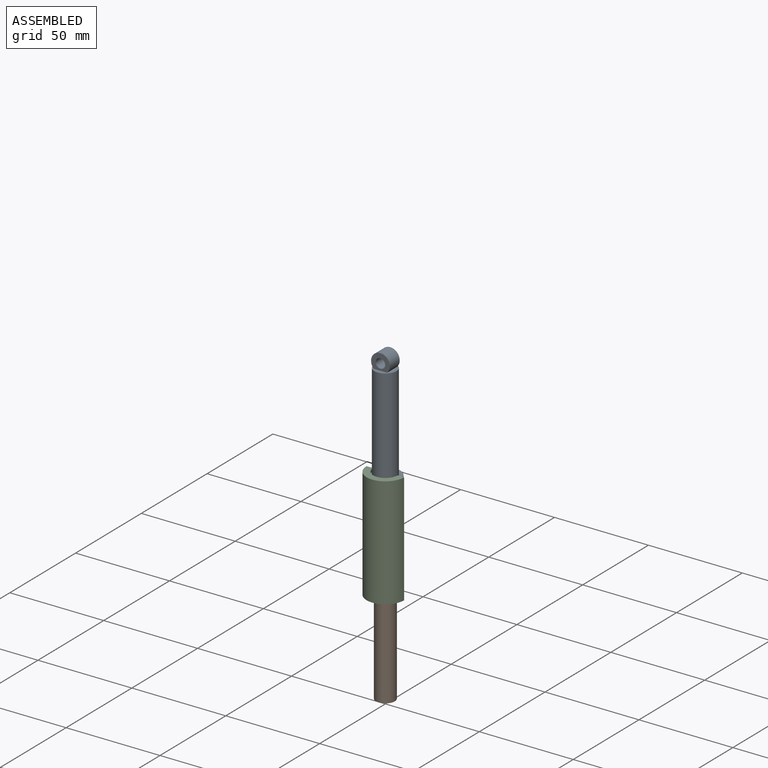
[diagram: assembled view]
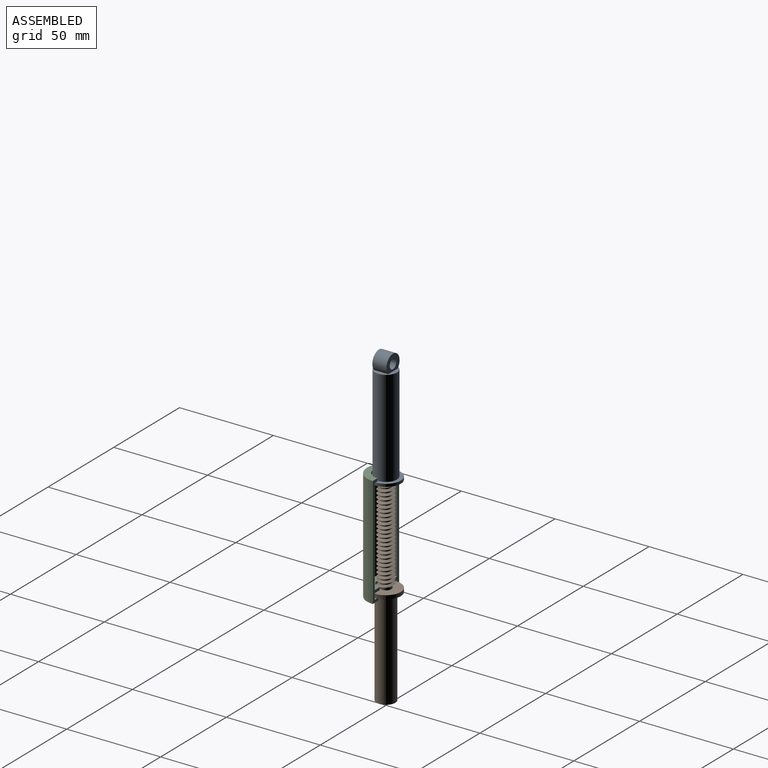
[diagram: assembled view, second angle]
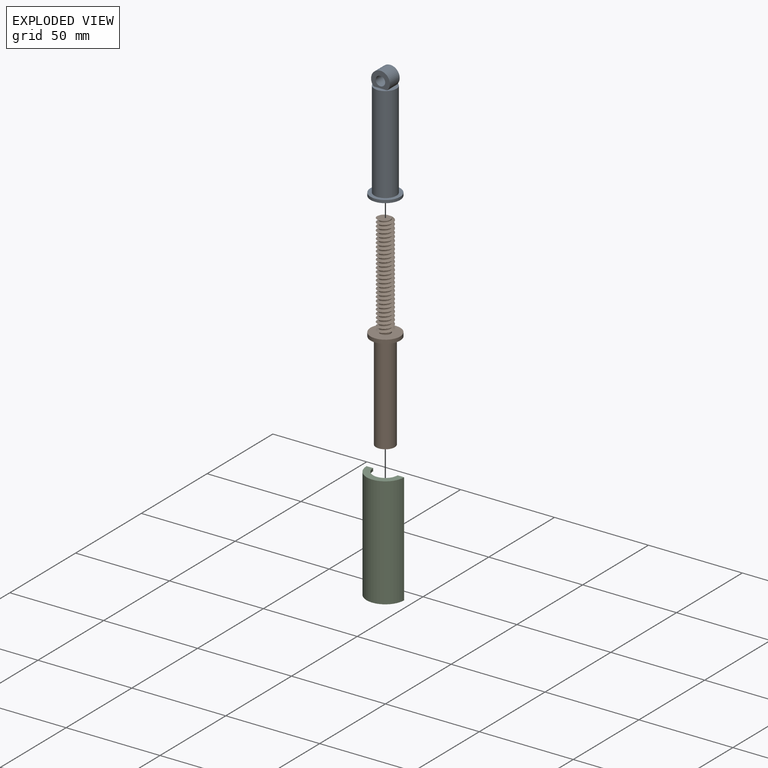
[diagram: exploded view]
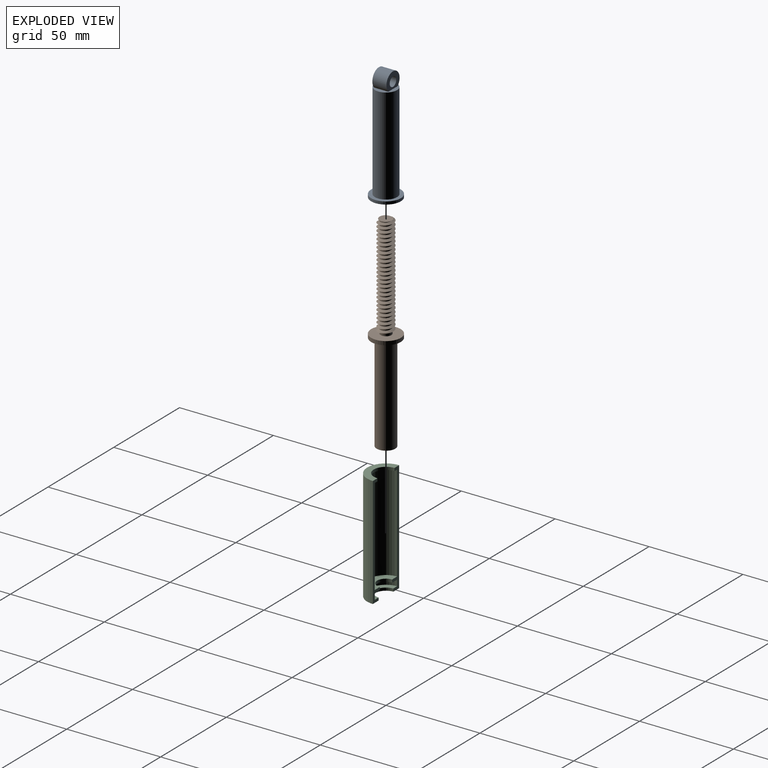
[diagram: exploded view, second angle]
ASSEMBLY  parts=3 mates=2
PART A: 14 faces, bbox 17.2x17.2x64.2 mm
  f0: cylinder r=3.27mm len=51.5mm, axis (0,0,-1), area -342.9mm2, adj f1,f2,f3,f6,f9
  f1: bspline ~53.67x11.55mm, area 1339.4mm2, adj f0,f2,f6,f9
  f2: bspline ~53.67x11.55mm, area 1336.7mm2, adj f0,f1,f3,f6,f9
  f3: plane 0.86x0.5mm, normal (0,1,0), area 0.2mm2, adj f0,f2,f9
  f4: cylinder r=7.9mm len=15.8mm, axis (0,0,-1), area 74.5mm2, adj f5,f6
  f5: plane 15.8x15.8mm, normal (0,0,1), area 86.7mm2, adj f4,f7
  f6: plane 17.17x17.17mm, normal (0,0,-1), area 141.6mm2, adj f0,f1,f2,f4
  f7: cylinder r=5.9mm len=51.5mm, axis (0,0,-1), area 1909.1mm2, adj f5,f8
  f8: plane 11.8x11.8mm, normal (0,0,1), area 55.8mm2, adj f7,f11,f12,f13
  f9: plane 9.71x9.69mm, normal (0,0,-1), area 52mm2, adj f0,f1,f2,f3
  f10: cylinder r=2.5mm len=7.5mm, axis (0,1,0), area 117.8mm2, adj f12,f13
  f11: cylinder r=5mm len=10mm, axis (0,1,0), area 176mm2, adj f8,f12,f13
  f12: plane 10x8.5mm, normal (0,-1,0), area 51.5mm2, adj f8,f10,f11
  f13: plane 10x8.5mm, normal (0,1,0), area 51.5mm2, adj f8,f10,f11
PART B: 10 faces, bbox 16.6x16.6x110.7 mm
  f0: bspline ~56.08x9.7mm, area 912.1mm2, adj f1,f5,f6,f7
  f1: bspline ~55.42x9.7mm, area 902.6mm2, adj f0,f5,f6,f7
  f2: cylinder r=7.9mm len=15.8mm, axis (0,0,-1), area 99.3mm2, adj f3,f4
  f3: plane 15.8x15.8mm, normal (0,0,1), area 169.6mm2, adj f2,f5
  f4: plane 15.8x15.8mm, normal (0,0,-1), area 117.5mm2, adj f2,f8
  f5: cylinder r=2.9mm len=55mm, axis (0,0,-1), area 419.2mm2, adj f0,f1,f3,f6,f7
  f6: plane 7.55x7.53mm, normal (0,0,1), area 36.6mm2, adj f0,f1,f5
  f7: plane 1.5x1.3mm, normal (0,1,0), area 1mm2, adj f0,f1,f5
  f8: cylinder r=5mm len=52.1mm, axis (0,0,1), area 1636.8mm2, adj f4,f9
  f9: plane 10x10mm, normal (0,0,-1), area 78.5mm2, adj f8
PART C: 14 faces, bbox 20x10x59.2 mm
  f0: cylinder r=6.5mm len=13mm, axis (0,0,-1), area 30.6mm2, adj f1,f11,f12,f13
  f1: plane 20x10mm, normal (0,0,1), area 90.7mm2, adj f0,f2,f12,f13
  f2: cylinder r=10mm len=59.2mm, axis (0,0,-1), area 1859.8mm2, adj f1,f3,f12,f13
  f3: plane 20x10mm, normal (0,0,-1), area 107.8mm2, adj f2,f4,f12,f13
  f4: cylinder r=5.6mm len=11.2mm, axis (0,0,-1), area 26.4mm2, adj f3,f5,f12,f13
  f5: plane 17x8.5mm, normal (0,0,1), area 64.2mm2, adj f4,f6,f12,f13
  f6: cylinder r=8.5mm len=17mm, axis (0,0,-1), area 85.5mm2, adj f5,f7,f12,f13
  f7: plane 17x8.5mm, normal (0,0,-1), area 78.8mm2, adj f6,f8,f12,f13
  f8: cylinder r=4.7mm len=9.4mm, axis (0,0,-1), area 22.1mm2, adj f7,f9,f12,f13
  f9: plane 17x8.5mm, normal (0,0,1), area 78.8mm2, adj f8,f10,f12,f13
  f10: cylinder r=8.5mm len=51.5mm, axis (0,0,-1), area 1375.2mm2, adj f9,f11,f12,f13
  f11: plane 17x8.5mm, normal (0,0,-1), area 47.1mm2, adj f0,f10,f12,f13
  f12: plane 59.2x5.3mm, normal (0,1,0), area 101.8mm2, adj f0,f1,f2,f3,f4,f5,f6,f7
  f13: plane 59.2x5.3mm, normal (0,1,0), area 101.8mm2, adj f0,f1,f2,f3,f4,f5,f6,f7
PLACE A t=(0,0,56.2)mm
PLACE B t=(0,0,2.1)mm
PLACE C at identity
MATE slider C.f0 <-> A.f4  axis (0,0,-1) through (0,0,0)mm
MATE fastened C.f0 <-> B.f2  axis (0,0,-1) through (0,0,0)mm
